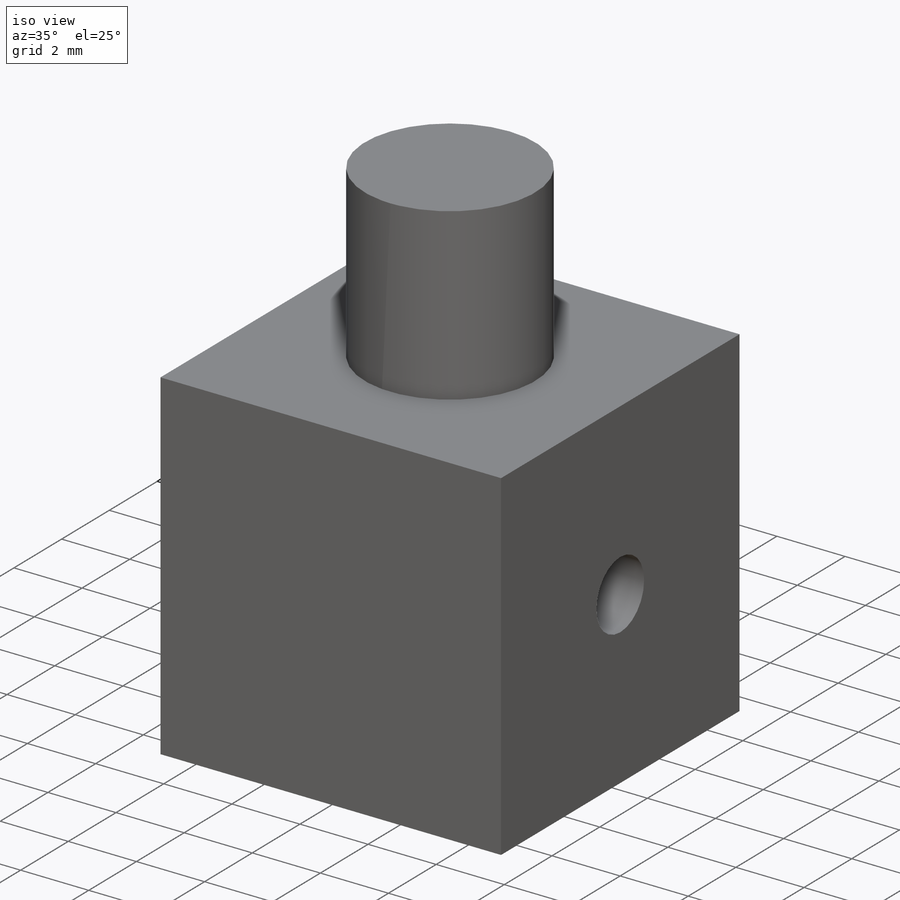
[diagram: iso view]
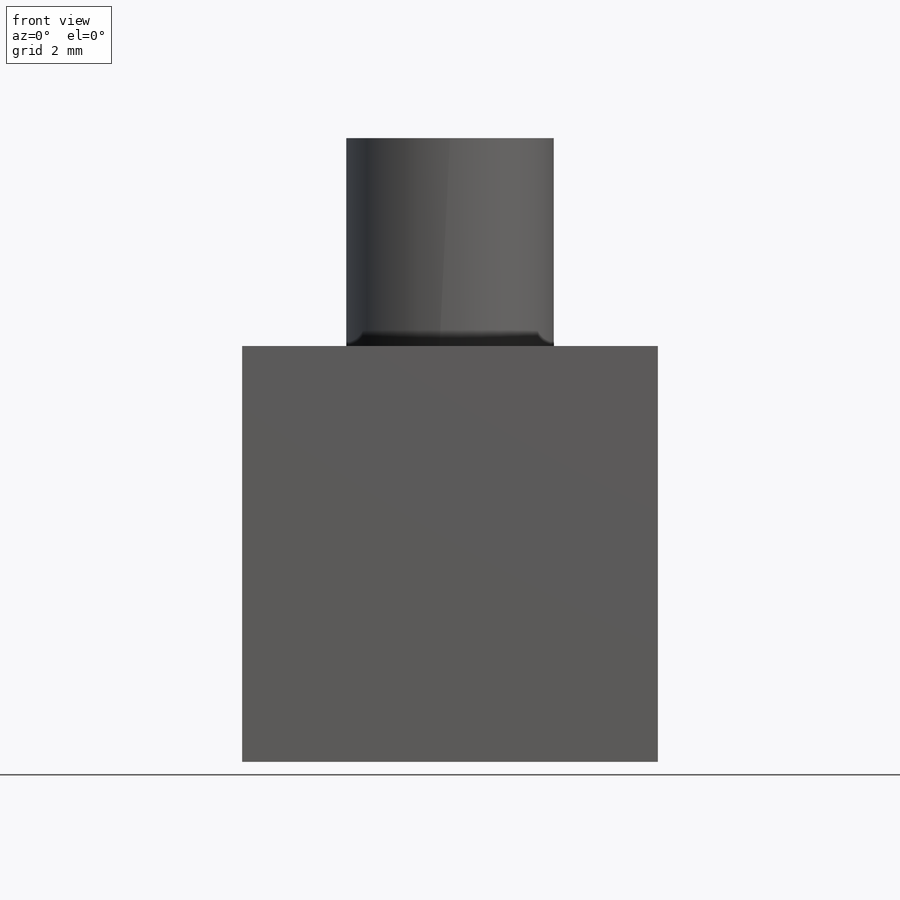
[diagram: front view]
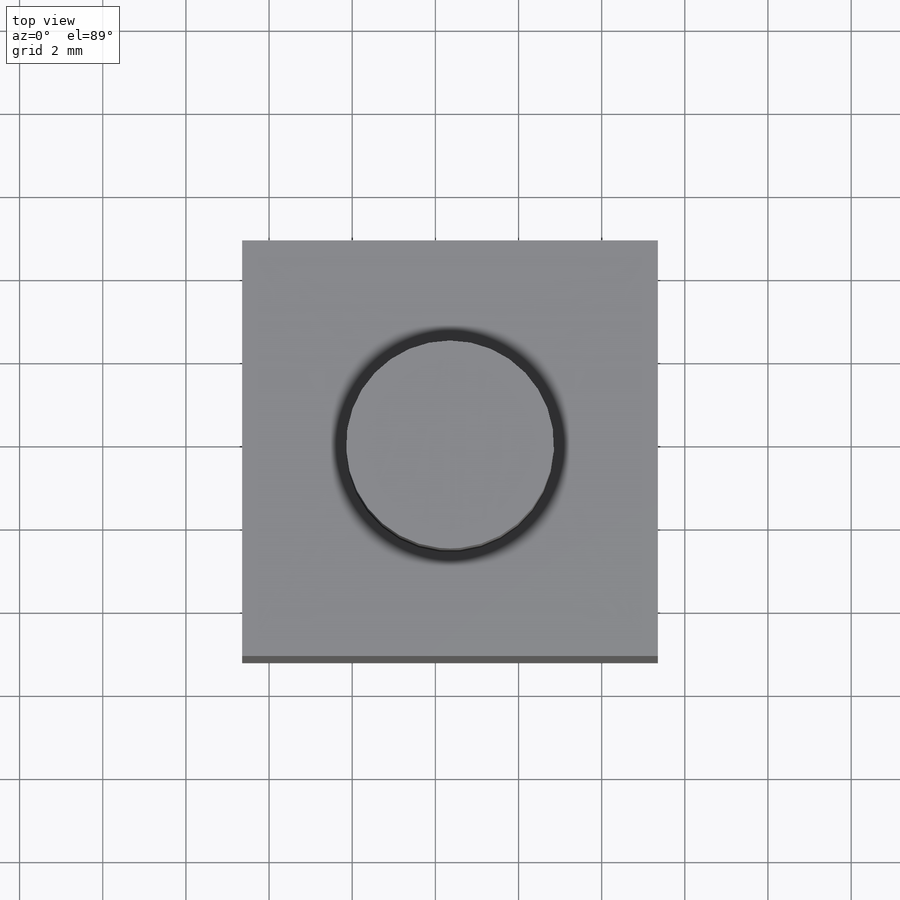
[diagram: top view]
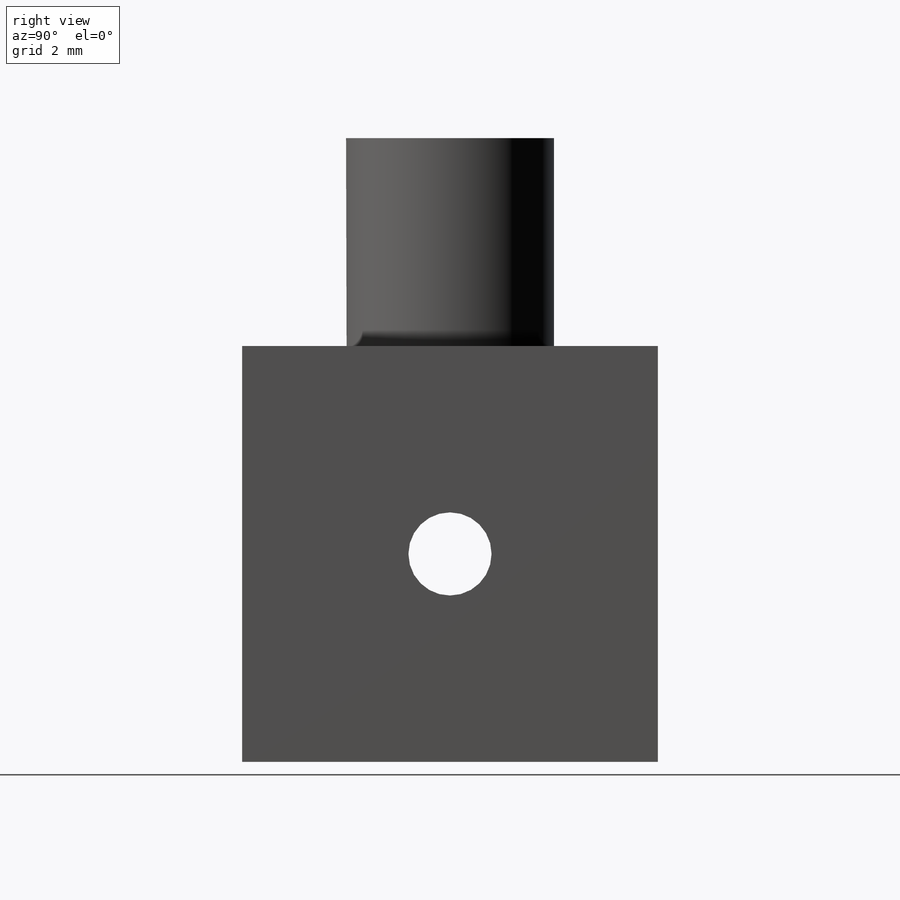
[diagram: right view]
SOLIDWORKS PART (.sldprt)
format: sldprt  version: not decoded by parser v0  size: 144,384 bytes
history: native  units: mm
features: sketch x4, plane x3, extrude x2, cut_extrude x2, material x1 (+12 scaffold rows collapsed)
feature tree (24):
  scaffold x12  (default folders/planes/origin — collapsed)
  material  "Material <not specified>"
  sketch  "Sketch1"  dims[D1=10.0mm D2=10.0mm]
  extrude  "Boss-Extrude1"  Depth=10mm
  plane  "Plane1"
  sketch  "Sketch2"  dims[D3=~2.561039mm D1=5.0mm D2=5.0mm]
  extrude  "Boss-Extrude2"  Depth=5mm
  plane  "Plane2"
  sketch  "Sketch3"  dims[D1=2.0mm]
  cut_extrude  "Cut-Extrude1"  Depth=10mm
  plane  "Plane3"
  sketch  "Sketch4"  dims[D1=~1.029632mm]
  cut_extrude  "Cut-Extrude2"  Depth=5mm
decode coverage: 8 of 8 modeling features carry decoded parameters
note: ~ marks probable driven/reference dimensions
note: suppression state not decoded; provenance and decode notes live in map.json
